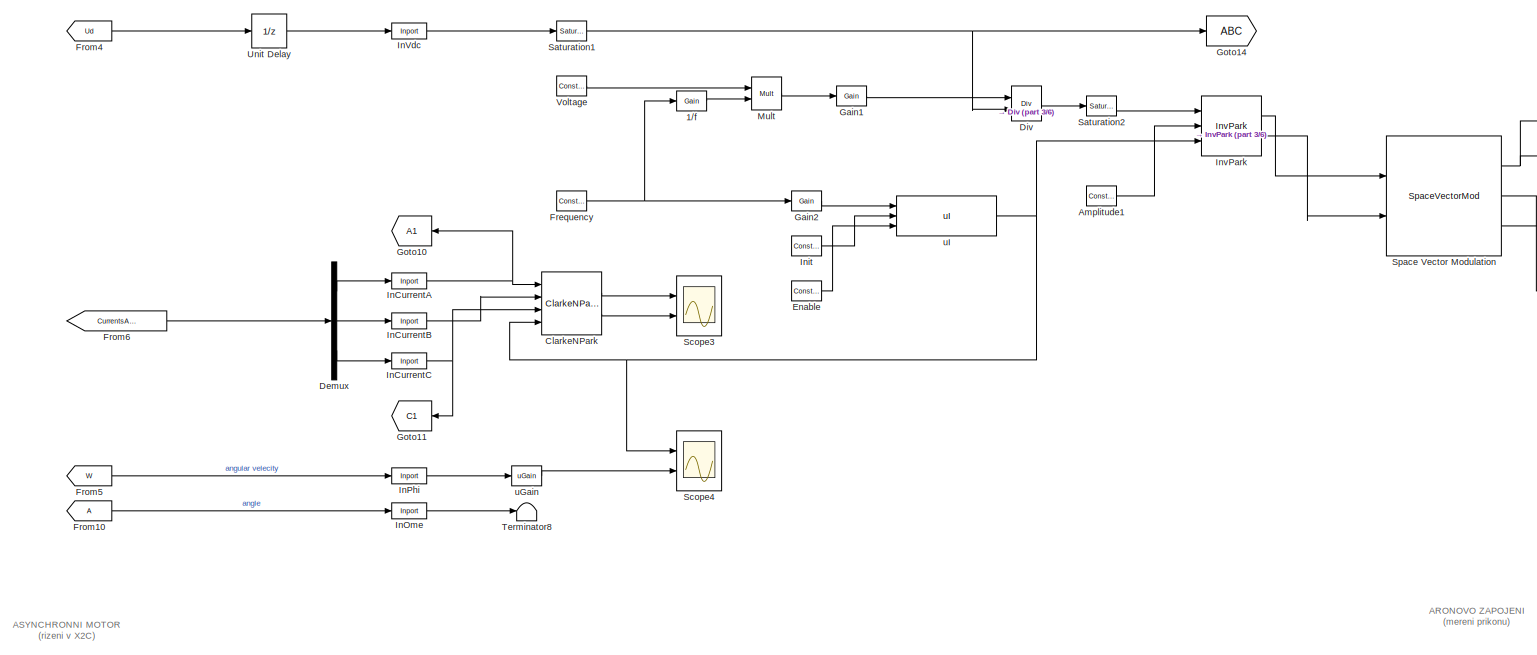
[diagram: root canvas - part 1/6, top center region]
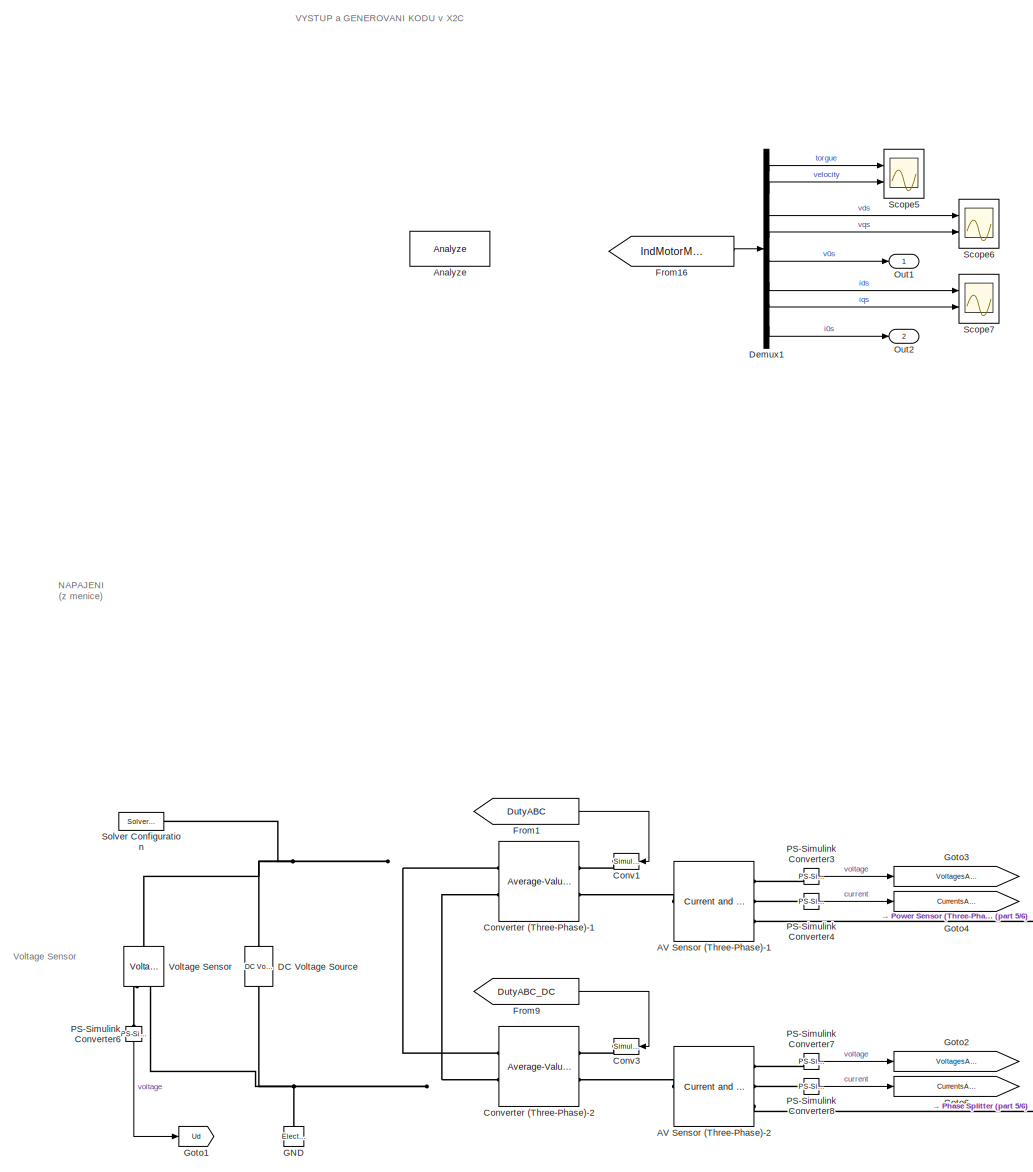
[diagram: root canvas - part 2/6, top left region]
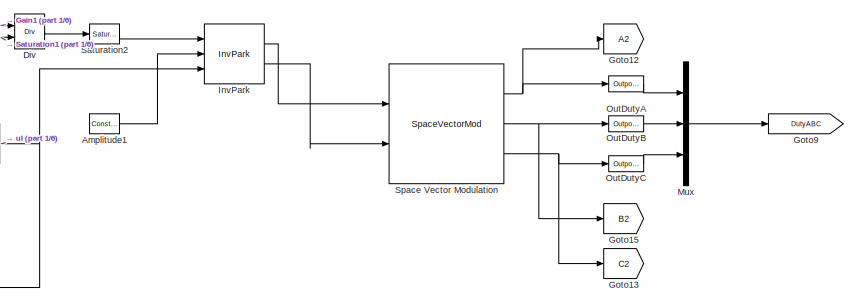
[diagram: root canvas - part 3/6, top right region]
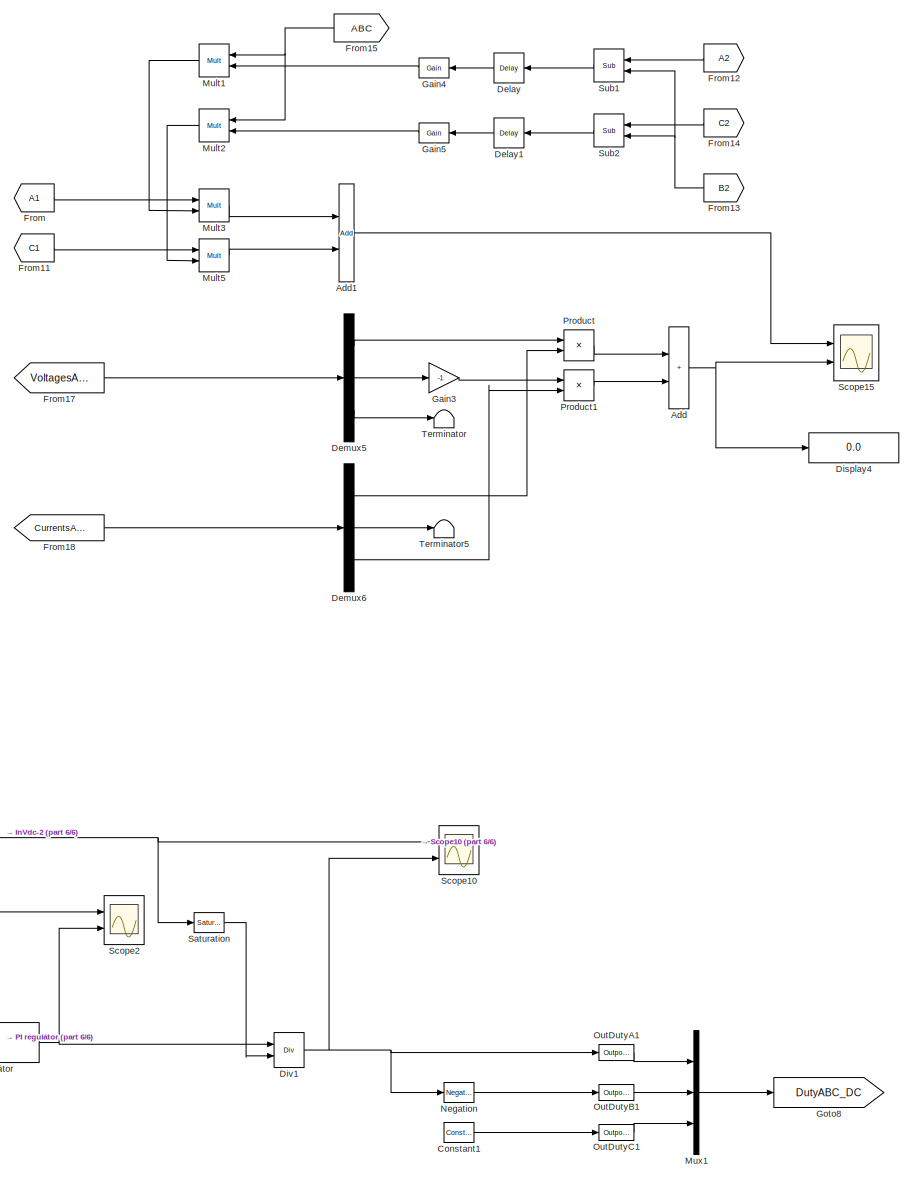
[diagram: root canvas - part 4/6, middle right region]
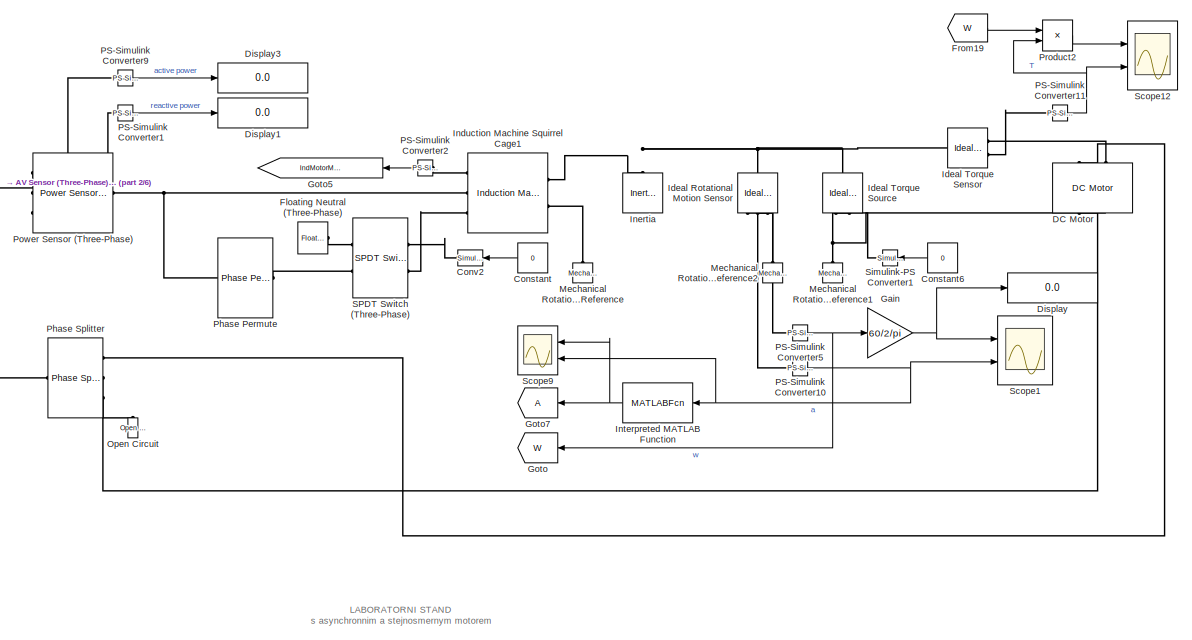
[diagram: root canvas - part 5/6, central region]
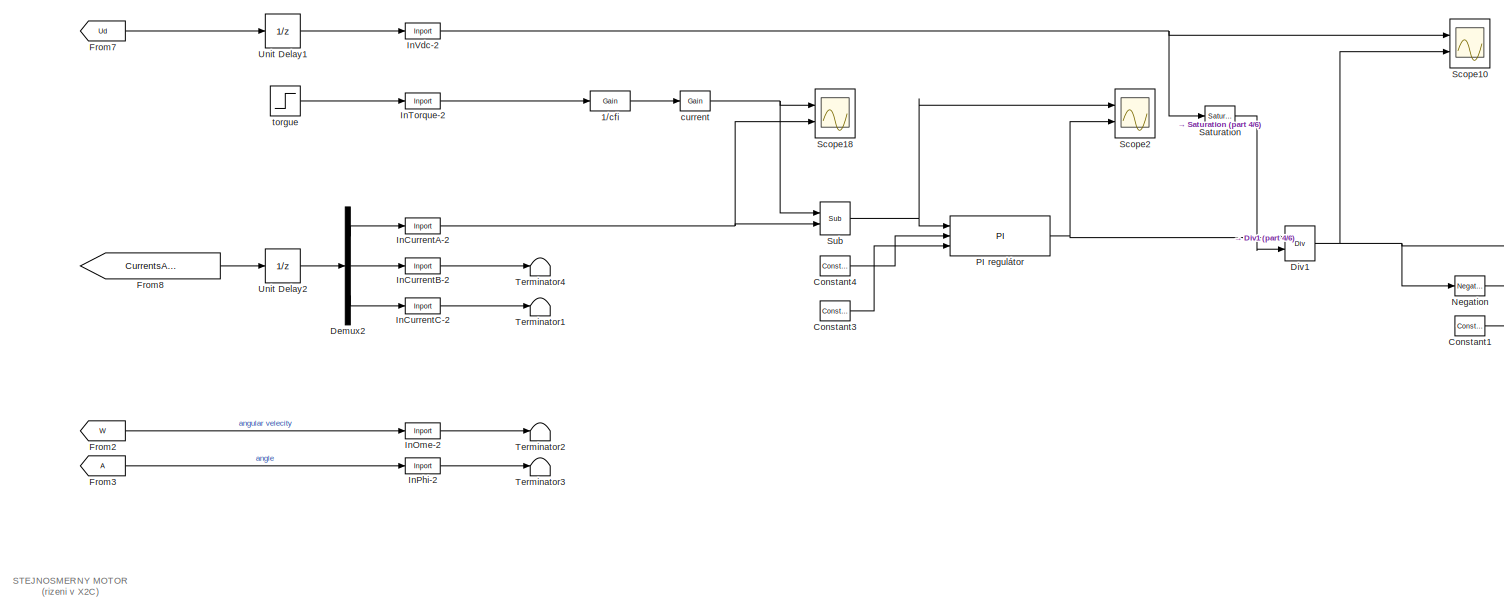
[diagram: root canvas - part 6/6, bottom center region]
MODEL slx_5c7b3cb49d3a
KIND model
CONFIG AbsTol = auto
CONFIG EnableMultiTasking = off
CONFIG FixedStep = auto
CONFIG MaxStep = auto
CONFIG MinStep = auto
CONFIG RelTol = 1e-3
CONFIG SampleTimeConstraint = Unconstrained
CONFIG SolverName = VariableStepAuto
CONFIG StartTime = 0.0
CONFIG StopTime = 3.0
BLOCK [Reference] 1//cfi  REF=General/Gain
  Ports = [1, 1]
  SourceBlock = General/Gain
  SourceProductName = X2C General
  SourceType = X2C - Gain
BLOCK [Reference] 1//f  REF=General/Gain
  Ports = [1, 1]
  SourceBlock = General/Gain
  SourceProductName = X2C General
  SourceType = X2C - Gain
BLOCK [Reference] AV Sensor (Three-Phase)-1  REF=ee_lib/Sensors &
Transducers/Current and Voltage
Sensor (Three-Phase)
  Ports = [0, 0, 0, 0, 0, 1, 3]
  SourceBlock = ee_lib/Sensors &\nTransducers/Current and Voltage\nSensor (Three-Phase)
  SourceProductBaseCode = PS
  SourceType = Current and Voltage\nSensor (Three-Phase)
BLOCK [Reference] AV Sensor (Three-Phase)-2  REF=ee_lib/Sensors &
Transducers/Current and Voltage
Sensor (Three-Phase)
  Ports = [0, 0, 0, 0, 0, 1, 3]
  SourceBlock = ee_lib/Sensors &\nTransducers/Current and Voltage\nSensor (Three-Phase)
  SourceProductBaseCode = PS
  SourceType = Current and Voltage\nSensor (Three-Phase)
BLOCK [Sum] Add
  IconShape = rectangular
  Ports = [2, 1]
BLOCK [Reference] Add1  REF=Math/Add
  Ports = [2, 1]
  SourceBlock = Math/Add
  SourceProductName = X2C Math
  SourceType = X2C - Add
BLOCK [Reference] Amplitude1  REF=General/Constant
  Ports = [0, 1]
  SourceBlock = General/Constant
  SourceProductName = X2C General
  SourceType = X2C - Constant
BLOCK [Reference] Analyze  REF=Basic/Analyze
  Ports = []
  SourceBlock = Basic/Analyze
  SourceProductName = X2C Basic
  SourceType = X2C System Block
BLOCK [Reference] ClarkeNPark  REF=MotorControl/ClarkeNPark
  Ports = [4, 2]
  SourceBlock = MotorControl/ClarkeNPark
  SourceProductName = X2C MotorControl
  SourceType = X2C - ClarkeNPark
BLOCK [Constant] Constant
  Value = 0
BLOCK [Reference] Constant1  REF=General/Constant
  Ports = [0, 1]
  SourceBlock = General/Constant
  SourceProductName = X2C General
  SourceType = X2C - Constant
BLOCK [Reference] Constant3  REF=General/Constant
  Ports = [0, 1]
  SourceBlock = General/Constant
  SourceProductName = X2C General
  SourceType = X2C - Constant
BLOCK [Reference] Constant4  REF=General/Constant
  Ports = [0, 1]
  SourceBlock = General/Constant
  SourceProductName = X2C General
  SourceType = X2C - Constant
BLOCK [Constant] Constant6
  NameLocation = top
  Value = 0
BLOCK [Reference] Conv1  REF=nesl_utility/Simulink-PS
Converter
  Ports = [1, 0, 0, 0, 0, 0, 1]
  SourceBlock = nesl_utility/Simulink-PS\nConverter
  SourceProductBaseCode = PW,SS
  SourceType = Simulink-PS\nConverter
BLOCK [Reference] Conv2  REF=nesl_utility/Simulink-PS
Converter
  Ports = [1, 0, 0, 0, 0, 0, 1]
  SourceBlock = nesl_utility/Simulink-PS\nConverter
  SourceProductBaseCode = PW,SS
  SourceType = Simulink-PS\nConverter
BLOCK [Reference] Conv3  REF=nesl_utility/Simulink-PS
Converter
  Ports = [1, 0, 0, 0, 0, 0, 1]
  SourceBlock = nesl_utility/Simulink-PS\nConverter
  SourceProductBaseCode = PW,SS
  SourceType = Simulink-PS\nConverter
BLOCK [Reference] Converter (Three-Phase)-1  REF=ee_lib/Semiconductors &
Converters/Converters/Average-Value
Voltage Source
Converter
(Three-Phase)
  Ports = [0, 0, 0, 0, 0, 2, 2]
  SourceBlock = ee_lib/Semiconductors &\nConverters/Converters/Average-Value\nVoltage Source\nConverter\n(Three-Phase)
  SourceProductBaseCode = PS
  SourceType = Average-Value\nVoltage Source\nConverter\n(Three-Phase)
BLOCK [Reference] Converter (Three-Phase)-2  REF=ee_lib/Semiconductors &
Converters/Converters/Average-Value
Voltage Source
Converter
(Three-Phase)
  Ports = [0, 0, 0, 0, 0, 2, 2]
  SourceBlock = ee_lib/Semiconductors &\nConverters/Converters/Average-Value\nVoltage Source\nConverter\n(Three-Phase)
  SourceProductBaseCode = PS
  SourceType = Average-Value\nVoltage Source\nConverter\n(Three-Phase)
BLOCK [Reference] DC Motor  REF=ee_lib/Electromechanical/Brushed Motors/DC Motor
  NameLocation = right
  Ports = [0, 0, 0, 0, 0, 2, 2]
  SourceBlock = ee_lib/Electromechanical/Brushed Motors/DC Motor
  SourceProductBaseCode = PS
  SourceType = DC Motor
BLOCK [Reference] DC Voltage Source  REF=fl_lib/Electrical/Electrical Sources/DC Voltage Source
  NameLocation = left
  Ports = [0, 0, 0, 0, 0, 1, 1]
  SourceBlock = fl_lib/Electrical/Electrical Sources/DC Voltage Source
  SourceProductBaseCode = SS
  SourceType = DC Voltage Source
BLOCK [Reference] Delay  REF=Control/Delay
  Ports = [1, 1]
  SourceBlock = Control/Delay
  SourceProductName = X2C Control
  SourceType = X2C - Delay
BLOCK [Reference] Delay1  REF=Control/Delay
  Ports = [1, 1]
  SourceBlock = Control/Delay
  SourceProductName = X2C Control
  SourceType = X2C - Delay
BLOCK [Demux] Demux
  Outputs = 3
  Ports = [1, 3]
BLOCK [Demux] Demux1
  NameLocation = top
  Outputs = 8
  Ports = [1, 8]
BLOCK [Demux] Demux2
  Outputs = 3
  Ports = [1, 3]
BLOCK [Demux] Demux5
  Outputs = 3
  Ports = [1, 3]
BLOCK [Demux] Demux6
  Outputs = 3
  Ports = [1, 3]
BLOCK [Display] Display
  Decimation = 1
  Ports = [1]
BLOCK [Display] Display1
  Decimation = 1
  Ports = [1]
BLOCK [Display] Display3
  Decimation = 1
  Ports = [1]
BLOCK [Display] Display4
  Decimation = 1
  Ports = [1]
BLOCK [Reference] Div  REF=Math/Div
  Ports = [2, 1]
  SourceBlock = Math/Div
  SourceProductName = X2C Math
  SourceType = X2C - Div
BLOCK [Reference] Div1  REF=Math/Div
  Ports = [2, 1]
  SourceBlock = Math/Div
  SourceProductName = X2C Math
  SourceType = X2C - Div
BLOCK [Reference] Enable  REF=General/Constant
  Ports = [0, 1]
  SourceBlock = General/Constant
  SourceProductName = X2C General
  SourceType = X2C - Constant
BLOCK [Reference] Floating Neutral (Three-Phase)  REF=ee_lib/Connectors &
References/Floating Neutral
(Three-Phase)
  Ports = [0, 0, 0, 0, 0, 1]
  SourceBlock = ee_lib/Connectors &\nReferences/Floating Neutral\n(Three-Phase)
  SourceProductBaseCode = PS
  SourceType = Floating Neutral\n(Three-Phase)
BLOCK [Reference] Frequency  REF=General/Constant
  Ports = [0, 1]
  SourceBlock = General/Constant
  SourceProductName = X2C General
  SourceType = X2C - Constant
BLOCK [From] From
  GotoTag = A1
BLOCK [From] From1
  GotoTag = DutyABC
  TagVisibility = global
BLOCK [From] From10
BLOCK [From] From11
  GotoTag = C1
BLOCK [From] From12
  GotoTag = A2
  NameLocation = top
BLOCK [From] From13
  GotoTag = B2
  NameLocation = top
BLOCK [From] From14
  GotoTag = C2
  NameLocation = top
BLOCK [From] From15
  GotoTag = ABC
BLOCK [From] From16
  GotoTag = IndMotorMeasures
  TagVisibility = global
BLOCK [From] From17
  GotoTag = VoltagesABC
BLOCK [From] From18
  GotoTag = CurrentsABC
BLOCK [From] From19
  GotoTag = W
BLOCK [From] From2
  GotoTag = W
BLOCK [From] From3
BLOCK [From] From4
  GotoTag = Ud
  TagVisibility = global
BLOCK [From] From5
  GotoTag = W
BLOCK [From] From6
  GotoTag = CurrentsABC
BLOCK [From] From7
  GotoTag = Ud
  TagVisibility = global
BLOCK [From] From8
  GotoTag = CurrentsABC_DC
BLOCK [From] From9
  GotoTag = DutyABC_DC
BLOCK [Reference] GND  REF=fl_lib/Electrical/Electrical Elements/Electrical Reference
  NameLocation = right
  Ports = [0, 0, 0, 0, 0, 1]
  SourceBlock = fl_lib/Electrical/Electrical Elements/Electrical Reference
  SourceProductBaseCode = SS
  SourceType = Electrical Reference
BLOCK [Gain] Gain
  Gain = 60/2/pi
BLOCK [Reference] Gain1  REF=General/Gain
  Ports = [1, 1]
  SourceBlock = General/Gain
  SourceProductName = X2C General
  SourceType = X2C - Gain
BLOCK [Reference] Gain2  REF=General/Gain
  Ports = [1, 1]
  SourceBlock = General/Gain
  SourceProductName = X2C General
  SourceType = X2C - Gain
BLOCK [Gain] Gain3
  Gain = -1
BLOCK [Reference] Gain4  REF=General/Gain
  Ports = [1, 1]
  SourceBlock = General/Gain
  SourceProductName = X2C General
  SourceType = X2C - Gain
BLOCK [Reference] Gain5  REF=General/Gain
  Ports = [1, 1]
  SourceBlock = General/Gain
  SourceProductName = X2C General
  SourceType = X2C - Gain
BLOCK [Goto] Goto
  GotoTag = W
BLOCK [Goto] Goto1
  GotoTag = Ud
  TagVisibility = global
BLOCK [Goto] Goto10
  GotoTag = A1
  NameLocation = top
BLOCK [Goto] Goto11
  GotoTag = C1
  NameLocation = top
BLOCK [Goto] Goto12
  GotoTag = A2
BLOCK [Goto] Goto13
  GotoTag = C2
BLOCK [Goto] Goto14
  GotoTag = ABC
BLOCK [Goto] Goto15
  GotoTag = B2
BLOCK [Goto] Goto2
  Commented = on
  GotoTag = VoltagesABC_DC
BLOCK [Goto] Goto3
  GotoTag = VoltagesABC
BLOCK [Goto] Goto4
  GotoTag = CurrentsABC
BLOCK [Goto] Goto5
  GotoTag = IndMotorMeasures
  TagVisibility = global
BLOCK [Goto] Goto6
  GotoTag = CurrentsABC_DC
BLOCK [Goto] Goto7
BLOCK [Goto] Goto8
  GotoTag = DutyABC_DC
BLOCK [Goto] Goto9
  GotoTag = DutyABC
  TagVisibility = global
BLOCK [Reference] Ideal Rotational Motion Sensor  REF=fl_lib/Mechanical/Mechanical Sensors/Ideal Rotational
Motion Sensor
  NameLocation = left
  Ports = [0, 0, 0, 0, 0, 1, 3]
  SourceBlock = fl_lib/Mechanical/Mechanical Sensors/Ideal Rotational\nMotion Sensor
  SourceProductBaseCode = SS
  SourceType = Ideal Rotational\nMotion Sensor
BLOCK [Reference] Ideal Torque Sensor  REF=fl_lib/Mechanical/Mechanical Sensors/Ideal Torque Sensor
  Ports = [0, 0, 0, 0, 0, 1, 2]
  SourceBlock = fl_lib/Mechanical/Mechanical Sensors/Ideal Torque Sensor
  SourceProductBaseCode = SS
  SourceType = Ideal Torque Sensor
BLOCK [Reference] Ideal Torque Source  REF=fl_lib/Mechanical/Mechanical Sources/Ideal Torque Source
  NameLocation = right
  Ports = [0, 0, 0, 0, 0, 1, 2]
  SourceBlock = fl_lib/Mechanical/Mechanical Sources/Ideal Torque Source
  SourceProductBaseCode = SS
  SourceType = Ideal Torque Source
BLOCK [Reference] InCurrentA  REF=General/Inport
  Ports = [1, 1]
  SourceBlock = General/Inport
  SourceProductName = X2C General
  SourceType = X2C - Inport
BLOCK [Reference] InCurrentA-2  REF=General/Inport
  Ports = [1, 1]
  SourceBlock = General/Inport
  SourceProductName = X2C General
  SourceType = X2C - Inport
BLOCK [Reference] InCurrentB  REF=General/Inport
  Ports = [1, 1]
  SourceBlock = General/Inport
  SourceProductName = X2C General
  SourceType = X2C - Inport
BLOCK [Reference] InCurrentB-2  REF=General/Inport
  Ports = [1, 1]
  SourceBlock = General/Inport
  SourceProductName = X2C General
  SourceType = X2C - Inport
BLOCK [Reference] InCurrentC  REF=General/Inport
  Ports = [1, 1]
  SourceBlock = General/Inport
  SourceProductName = X2C General
  SourceType = X2C - Inport
BLOCK [Reference] InCurrentC-2  REF=General/Inport
  Ports = [1, 1]
  SourceBlock = General/Inport
  SourceProductName = X2C General
  SourceType = X2C - Inport
BLOCK [Reference] InOme  REF=General/Inport
  Ports = [1, 1]
  SourceBlock = General/Inport
  SourceProductName = X2C General
  SourceType = X2C - Inport
BLOCK [Reference] InOme-2  REF=General/Inport
  Ports = [1, 1]
  SourceBlock = General/Inport
  SourceProductName = X2C General
  SourceType = X2C - Inport
BLOCK [Reference] InPhi  REF=General/Inport
  Ports = [1, 1]
  SourceBlock = General/Inport
  SourceProductName = X2C General
  SourceType = X2C - Inport
BLOCK [Reference] InPhi-2  REF=General/Inport
  Ports = [1, 1]
  SourceBlock = General/Inport
  SourceProductName = X2C General
  SourceType = X2C - Inport
BLOCK [Reference] InTorque-2  REF=General/Inport
  Ports = [1, 1]
  SourceBlock = General/Inport
  SourceProductName = X2C General
  SourceType = X2C - Inport
BLOCK [Reference] InVdc  REF=General/Inport
  Ports = [1, 1]
  SourceBlock = General/Inport
  SourceProductName = X2C General
  SourceType = X2C - Inport
BLOCK [Reference] InVdc-2  REF=General/Inport
  Ports = [1, 1]
  SourceBlock = General/Inport
  SourceProductName = X2C General
  SourceType = X2C - Inport
BLOCK [Reference] Induction Machine Squirrel Cage1  REF=ee_lib/Electromechanical/Asynchronous/Induction Machine
Squirrel Cage
  Ports = [0, 0, 0, 0, 0, 2, 3]
  SourceBlock = ee_lib/Electromechanical/Asynchronous/Induction Machine\nSquirrel Cage
  SourceProductBaseCode = PS
  SourceType = Induction Machine\nSquirrel Cage
BLOCK [Reference] Inertia  REF=fl_lib/Mechanical/Rotational Elements/Inertia
  NameLocation = right
  Ports = [0, 0, 0, 0, 0, 1]
  SourceBlock = fl_lib/Mechanical/Rotational Elements/Inertia
  SourceProductBaseCode = SS
  SourceType = Inertia
BLOCK [Reference] Init  REF=General/Constant
  Ports = [0, 1]
  SourceBlock = General/Constant
  SourceProductName = X2C General
  SourceType = X2C - Constant
BLOCK [MATLABFcn] Interpreted MATLAB Function
  MATLABFcn = mod(u(1),2*pi)-pi
  Ports = [1, 1]
BLOCK [Reference] InvPark  REF=MotorControl/InvPark
  Ports = [3, 2]
  SourceBlock = MotorControl/InvPark
  SourceProductName = X2C MotorControl
  SourceType = X2C - InvPark
BLOCK [Reference] Mechanical Rotational Reference  REF=fl_lib/Mechanical/Rotational Elements/Mechanical
Rotational Reference
  NameLocation = right
  Ports = [0, 0, 0, 0, 0, 1]
  SourceBlock = fl_lib/Mechanical/Rotational Elements/Mechanical\nRotational Reference
  SourceProductBaseCode = SS
  SourceType = Mechanical\nRotational Reference
BLOCK [Reference] Mechanical Rotational Reference1  REF=fl_lib/Mechanical/Rotational Elements/Mechanical
Rotational Reference
  NameLocation = right
  Ports = [0, 0, 0, 0, 0, 1]
  SourceBlock = fl_lib/Mechanical/Rotational Elements/Mechanical\nRotational Reference
  SourceProductBaseCode = SS
  SourceType = Mechanical\nRotational Reference
BLOCK [Reference] Mechanical Rotational Reference2  REF=fl_lib/Mechanical/Rotational Elements/Mechanical
Rotational Reference
  NameLocation = right
  Ports = [0, 0, 0, 0, 0, 1]
  SourceBlock = fl_lib/Mechanical/Rotational Elements/Mechanical\nRotational Reference
  SourceProductBaseCode = SS
  SourceType = Mechanical\nRotational Reference
BLOCK [Reference] Mult  REF=Math/Mult
  Ports = [2, 1]
  SourceBlock = Math/Mult
  SourceProductName = X2C Math
  SourceType = X2C - Mult
BLOCK [Reference] Mult1  REF=Math/Mult
  Ports = [2, 1]
  SourceBlock = Math/Mult
  SourceProductName = X2C Math
  SourceType = X2C - Mult
BLOCK [Reference] Mult2  REF=Math/Mult
  Ports = [2, 1]
  SourceBlock = Math/Mult
  SourceProductName = X2C Math
  SourceType = X2C - Mult
BLOCK [Reference] Mult3  REF=Math/Mult
  Ports = [2, 1]
  SourceBlock = Math/Mult
  SourceProductName = X2C Math
  SourceType = X2C - Mult
BLOCK [Reference] Mult5  REF=Math/Mult
  Ports = [2, 1]
  SourceBlock = Math/Mult
  SourceProductName = X2C Math
  SourceType = X2C - Mult
BLOCK [Mux] Mux
  DisplayOption = bar
  Inputs = 3
  Ports = [3, 1]
BLOCK [Mux] Mux1
  DisplayOption = bar
  Inputs = 3
  Ports = [3, 1]
BLOCK [Reference] Negation  REF=Math/Negation
  Ports = [1, 1]
  SourceBlock = Math/Negation
  SourceProductName = X2C Math
  SourceType = X2C - Negation
BLOCK [Reference] Open Circuit  REF=fl_lib/Electrical/Electrical Elements/Open Circuit
  NameLocation = right
  Ports = [0, 0, 0, 0, 0, 1]
  SourceBlock = fl_lib/Electrical/Electrical Elements/Open Circuit
  SourceProductBaseCode = SS
  SourceType = Open Circuit
BLOCK [Outport] Out1
  NameLocation = top
BLOCK [Outport] Out2
  NameLocation = top
  Port = 2
BLOCK [Reference] OutDutyA  REF=General/Outport
  Ports = [1, 1]
  SourceBlock = General/Outport
  SourceProductName = X2C General
  SourceType = X2C - Outport
BLOCK [Reference] OutDutyA1  REF=General/Outport
  Ports = [1, 1]
  SourceBlock = General/Outport
  SourceProductName = X2C General
  SourceType = X2C - Outport
BLOCK [Reference] OutDutyB  REF=General/Outport
  Ports = [1, 1]
  SourceBlock = General/Outport
  SourceProductName = X2C General
  SourceType = X2C - Outport
BLOCK [Reference] OutDutyB1  REF=General/Outport
  Ports = [1, 1]
  SourceBlock = General/Outport
  SourceProductName = X2C General
  SourceType = X2C - Outport
BLOCK [Reference] OutDutyC  REF=General/Outport
  Ports = [1, 1]
  SourceBlock = General/Outport
  SourceProductName = X2C General
  SourceType = X2C - Outport
BLOCK [Reference] OutDutyC1  REF=General/Outport
  Ports = [1, 1]
  SourceBlock = General/Outport
  SourceProductName = X2C General
  SourceType = X2C - Outport
BLOCK [Reference] PI regulátor  REF=Control/PI
  Ports = [3, 1]
  SourceBlock = Control/PI
  SourceProductName = X2C Control
  SourceType = X2C - PI
BLOCK [Reference] PS-Simulink Converter1  REF=nesl_utility/PS-Simulink
Converter
  Ports = [0, 1, 0, 0, 0, 1]
  SourceBlock = nesl_utility/PS-Simulink\nConverter
  SourceProductBaseCode = PW,SS
  SourceType = PS-Simulink\nConverter
BLOCK [Reference] PS-Simulink Converter10  REF=nesl_utility/PS-Simulink
Converter
  Ports = [0, 1, 0, 0, 0, 1]
  SourceBlock = nesl_utility/PS-Simulink\nConverter
  SourceProductBaseCode = PW,SS
  SourceType = PS-Simulink\nConverter
BLOCK [Reference] PS-Simulink Converter11  REF=nesl_utility/PS-Simulink
Converter
  Ports = [0, 1, 0, 0, 0, 1]
  SourceBlock = nesl_utility/PS-Simulink\nConverter
  SourceProductBaseCode = PW,SS
  SourceType = PS-Simulink\nConverter
BLOCK [Reference] PS-Simulink Converter2  REF=nesl_utility/PS-Simulink
Converter
  NameLocation = top
  Ports = [0, 1, 0, 0, 0, 1]
  SourceBlock = nesl_utility/PS-Simulink\nConverter
  SourceProductBaseCode = PW,SS
  SourceType = PS-Simulink\nConverter
BLOCK [Reference] PS-Simulink Converter3  REF=nesl_utility/PS-Simulink
Converter
  Ports = [0, 1, 0, 0, 0, 1]
  SourceBlock = nesl_utility/PS-Simulink\nConverter
  SourceProductBaseCode = PW,SS
  SourceType = PS-Simulink\nConverter
BLOCK [Reference] PS-Simulink Converter4  REF=nesl_utility/PS-Simulink
Converter
  Ports = [0, 1, 0, 0, 0, 1]
  SourceBlock = nesl_utility/PS-Simulink\nConverter
  SourceProductBaseCode = PW,SS
  SourceType = PS-Simulink\nConverter
BLOCK [Reference] PS-Simulink Converter5  REF=nesl_utility/PS-Simulink
Converter
  Ports = [0, 1, 0, 0, 0, 1]
  SourceBlock = nesl_utility/PS-Simulink\nConverter
  SourceProductBaseCode = PW,SS
  SourceType = PS-Simulink\nConverter
BLOCK [Reference] PS-Simulink Converter6  REF=nesl_utility/PS-Simulink
Converter
  NameLocation = left
  Ports = [0, 1, 0, 0, 0, 1]
  SourceBlock = nesl_utility/PS-Simulink\nConverter
  SourceProductBaseCode = PW,SS
  SourceType = PS-Simulink\nConverter
BLOCK [Reference] PS-Simulink Converter7  REF=nesl_utility/PS-Simulink
Converter
  Ports = [0, 1, 0, 0, 0, 1]
  SourceBlock = nesl_utility/PS-Simulink\nConverter
  SourceProductBaseCode = PW,SS
  SourceType = PS-Simulink\nConverter
BLOCK [Reference] PS-Simulink Converter8  REF=nesl_utility/PS-Simulink
Converter
  Ports = [0, 1, 0, 0, 0, 1]
  SourceBlock = nesl_utility/PS-Simulink\nConverter
  SourceProductBaseCode = PW,SS
  SourceType = PS-Simulink\nConverter
BLOCK [Reference] PS-Simulink Converter9  REF=nesl_utility/PS-Simulink
Converter
  Ports = [0, 1, 0, 0, 0, 1]
  SourceBlock = nesl_utility/PS-Simulink\nConverter
  SourceProductBaseCode = PW,SS
  SourceType = PS-Simulink\nConverter
BLOCK [Reference] Phase Permute  REF=ee_lib/Connectors &
References/Phase Permute
  Ports = [0, 0, 0, 0, 0, 1, 1]
  SourceBlock = ee_lib/Connectors &\nReferences/Phase Permute
  SourceProductBaseCode = PS
  SourceType = Phase Permute
BLOCK [Reference] Phase Splitter  REF=ee_lib/Connectors &
References/Phase Splitter
  Ports = [0, 0, 0, 0, 0, 1, 3]
  SourceBlock = ee_lib/Connectors &\nReferences/Phase Splitter
  SourceProductBaseCode = PS
  SourceType = Phase Splitter
BLOCK [Reference] Power Sensor (Three-Phase)  REF=ee_lib/Sensors &
Transducers/Power Sensor
(Three-Phase)
  Ports = [0, 0, 0, 0, 0, 3, 1]
  SourceBlock = ee_lib/Sensors &\nTransducers/Power Sensor\n(Three-Phase)
  SourceProductBaseCode = PS
  SourceType = Power Sensor\n(Three-Phase)
BLOCK [Product] Product
  Ports = [2, 1]
BLOCK [Product] Product1
  Ports = [2, 1]
BLOCK [Product] Product2
  Ports = [2, 1]
BLOCK [Reference] SPDT Switch (Three-Phase)  REF=ee_lib/Switches & Breakers/SPDT Switch
(Three-Phase)
  Ports = [0, 0, 0, 0, 0, 2, 2]
  SourceBlock = ee_lib/Switches & Breakers/SPDT Switch\n(Three-Phase)
  SourceProductBaseCode = PS
  SourceType = SPDT Switch\n(Three-Phase)
BLOCK [Reference] Saturation  REF=General/Saturation
  Ports = [1, 1]
  SourceBlock = General/Saturation
  SourceProductName = X2C General
  SourceType = X2C - Saturation
BLOCK [Reference] Saturation1  REF=General/Saturation
  Ports = [1, 1]
  SourceBlock = General/Saturation
  SourceProductName = X2C General
  SourceType = X2C - Saturation
BLOCK [Reference] Saturation2  REF=General/Saturation
  Ports = [1, 1]
  SourceBlock = General/Saturation
  SourceProductName = X2C General
  SourceType = X2C - Saturation
BLOCK [Scope] Scope1
  Floating = off
  NameLocation = top
  NumInputPorts = 2
  Ports = [2]
  ScopeSpecificationString = Simulink.scopes.TimeScopeBlockCfg('CurrentConfiguration', extmgr.ConfigurationSet(extmgr.Configuration('Core','General UI',true),extmgr.Configuration('Core','Source UI',true),extmgr.Configuration('Sources','WiredSimulink',true),extmgr.Configuration('Visuals','Time Domain',true,'SerializedDisplays',{struct('MinYLimReal','-187.50013','MaxYLimReal','1687.50113','YLabelReal','','MinYLimMag',' 0.00000'...<+1995ch>
BLOCK [Scope] Scope10
  Floating = off
  NameLocation = top
  NumInputPorts = 2
  Ports = [2]
  ScopeSpecificationString = Simulink.scopes.TimeScopeBlockCfg('CurrentConfiguration', extmgr.ConfigurationSet(extmgr.Configuration('Core','General UI',true),extmgr.Configuration('Core','Source UI',true),extmgr.Configuration('Sources','WiredSimulink',true,'DataLoggingVariableName','ScopeData2'),extmgr.Configuration('Visuals','Time Domain',true,'SerializedDisplays',{struct('MinYLimReal','-0.04228','MaxYLimReal','0.38051','YLab...<+1488ch>
BLOCK [Scope] Scope12
  Floating = off
  NameLocation = top
  NumInputPorts = 2
  Ports = [2]
  ScopeSpecificationString = Simulink.scopes.TimeScopeBlockCfg('CurrentConfiguration', extmgr.ConfigurationSet(extmgr.Configuration('Core','General UI',true),extmgr.Configuration('Core','Source UI',true),extmgr.Configuration('Sources','WiredSimulink',true,'DataLoggingVariableName','ScopeData8'),extmgr.Configuration('Visuals','Time Domain',true,'SerializedDisplays',{struct('MinYLimReal','-29.82182','MaxYLimReal','268.18897','Y...<+2029ch>
BLOCK [Scope] Scope15
  Floating = off
  NumInputPorts = 2
  Ports = [2]
  ScopeSpecificationString = Simulink.scopes.TimeScopeBlockCfg('CurrentConfiguration', extmgr.ConfigurationSet(extmgr.Configuration('Core','General UI',true),extmgr.Configuration('Core','Source UI',true),extmgr.Configuration('Sources','WiredSimulink',true,'DataLoggingVariableName','ScopeData6'),extmgr.Configuration('Visuals','Time Domain',true,'SerializedDisplays',{struct('MinYLimReal','-145.77676','MaxYLimReal','1311.99088',...<+1511ch>
BLOCK [Scope] Scope18
  Floating = off
  NameLocation = top
  NumInputPorts = 2
  Ports = [2]
  ScopeSpecificationString = Simulink.scopes.TimeScopeBlockCfg('CurrentConfiguration', extmgr.ConfigurationSet(extmgr.Configuration('Core','General UI',true),extmgr.Configuration('Core','Source UI',true),extmgr.Configuration('Sources','WiredSimulink',true,'DataLoggingVariableName','ScopeData3'),extmgr.Configuration('Visuals','Time Domain',true,'SerializedDisplays',{struct('MinYLimReal','-16.85963','MaxYLimReal','-16.17326','Y...<+1519ch>
BLOCK [Scope] Scope2
  Floating = off
  NameLocation = top
  NumInputPorts = 2
  Ports = [2]
  ScopeSpecificationString = Simulink.scopes.TimeScopeBlockCfg('CurrentConfiguration', extmgr.ConfigurationSet(extmgr.Configuration('Core','General UI',true),extmgr.Configuration('Core','Source UI',true),extmgr.Configuration('Sources','WiredSimulink',true,'DataLoggingVariableName','ScopeData1'),extmgr.Configuration('Visuals','Time Domain',true,'SerializedDisplays',{struct('MinYLimReal','-5.22977','MaxYLimReal','13.73456','YLa...<+1511ch>
BLOCK [Scope] Scope3
  Floating = off
  NameLocation = top
  NumInputPorts = 2
  Ports = [2]
  ScopeSpecificationString = Simulink.scopes.TimeScopeBlockCfg('CurrentConfiguration', extmgr.ConfigurationSet(extmgr.Configuration('Core','General UI',true),extmgr.Configuration('Core','Source UI',true),extmgr.Configuration('Sources','WiredSimulink',true,'DataLoggingVariableName','ScopeData4'),extmgr.Configuration('Visuals','Time Domain',true,'SerializedDisplays',{struct('MinYLimReal','-0.45212','MaxYLimReal','2.25034','YLab...<+2044ch>
BLOCK [Scope] Scope4
  Floating = off
  NameLocation = top
  NumInputPorts = 2
  Ports = [2]
  ScopeSpecificationString = Simulink.scopes.TimeScopeBlockCfg('CurrentConfiguration', extmgr.ConfigurationSet(extmgr.Configuration('Core','General UI',true),extmgr.Configuration('Core','Source UI',true),extmgr.Configuration('Sources','WiredSimulink',true,'DataLoggingVariableName','ScopeData5'),extmgr.Configuration('Visuals','Time Domain',true,'SerializedDisplays',{struct('MinYLimReal','-0.45212','MaxYLimReal','2.25034','YLab...<+2044ch>
BLOCK [Scope] Scope5
  Floating = off
  NameLocation = top
  NumInputPorts = 2
  Ports = [2]
  ScopeSpecificationString = Simulink.scopes.TimeScopeBlockCfg('CurrentConfiguration', extmgr.ConfigurationSet(extmgr.Configuration('Core','General UI',true),extmgr.Configuration('Core','Source UI',true),extmgr.Configuration('Sources','WiredSimulink',true,'DataLoggingVariableName','ScopeData9'),extmgr.Configuration('Visuals','Time Domain',true,'SerializedDisplays',{struct('MinYLimReal','-0.5617','MaxYLimReal','5.05534','YLabe...<+2031ch>
BLOCK [Scope] Scope6
  Floating = off
  NameLocation = top
  NumInputPorts = 2
  Ports = [2]
  ScopeSpecificationString = Simulink.scopes.TimeScopeBlockCfg('CurrentConfiguration', extmgr.ConfigurationSet(extmgr.Configuration('Core','General UI',true),extmgr.Configuration('Core','Source UI',true),extmgr.Configuration('Sources','WiredSimulink',true,'DataLoggingVariableName','ScopeData10'),extmgr.Configuration('Visuals','Time Domain',true,'SerializedDisplays',{struct('MinYLimReal','-0.07633','MaxYLimReal','0.68697','YLa...<+2016ch>
BLOCK [Scope] Scope7
  Floating = off
  NameLocation = top
  NumInputPorts = 2
  Ports = [2]
  ScopeSpecificationString = Simulink.scopes.TimeScopeBlockCfg('CurrentConfiguration', extmgr.ConfigurationSet(extmgr.Configuration('Core','General UI',true),extmgr.Configuration('Core','Source UI',true),extmgr.Configuration('Sources','WiredSimulink',true,'DataLoggingVariableName','ScopeData11'),extmgr.Configuration('Visuals','Time Domain',true,'SerializedDisplays',{struct('MinYLimReal','-1.35987','MaxYLimReal','12.2388','YLa...<+2024ch>
BLOCK [Scope] Scope9
  Floating = off
  NameLocation = top
  NumInputPorts = 2
  Ports = [2]
  ScopeSpecificationString = Simulink.scopes.TimeScopeBlockCfg('CurrentConfiguration', extmgr.ConfigurationSet(extmgr.Configuration('Core','General UI',true),extmgr.Configuration('Core','Source UI',true),extmgr.Configuration('Sources','WiredSimulink',true,'DataLoggingVariableName','ScopeData7'),extmgr.Configuration('Visuals','Time Domain',true,'SerializedDisplays',{struct('MinYLimReal','-57.31613','MaxYLimReal','515.84519','Y...<+2050ch>
BLOCK [Reference] Simulink-PS Converter1  REF=nesl_utility/Simulink-PS
Converter
  NameLocation = top
  Ports = [1, 0, 0, 0, 0, 0, 1]
  SourceBlock = nesl_utility/Simulink-PS\nConverter
  SourceProductBaseCode = PW,SS
  SourceType = Simulink-PS\nConverter
BLOCK [Reference] Solver Configuration  REF=nesl_utility/Solver
Configuration
  Ports = [0, 0, 0, 0, 0, 0, 1]
  SourceBlock = nesl_utility/Solver\nConfiguration
  SourceProductBaseCode = PW,SS
  SourceType = Solver\nConfiguration
BLOCK [Reference] Space Vector Modulation  REF=MotorControl/SpaceVectorMod
  Ports = [2, 3]
  SourceBlock = MotorControl/SpaceVectorMod
  SourceProductName = X2C MotorControl
  SourceType = X2C - SpaceVectorMod
BLOCK [Reference] Sub  REF=Math/Sub
  Ports = [2, 1]
  SourceBlock = Math/Sub
  SourceProductName = X2C Math
  SourceType = X2C - Sub
BLOCK [Reference] Sub1  REF=Math/Sub
  Ports = [2, 1]
  SourceBlock = Math/Sub
  SourceProductName = X2C Math
  SourceType = X2C - Sub
BLOCK [Reference] Sub2  REF=Math/Sub
  Ports = [2, 1]
  SourceBlock = Math/Sub
  SourceProductName = X2C Math
  SourceType = X2C - Sub
BLOCK [Terminator] Terminator
BLOCK [Terminator] Terminator1
BLOCK [Terminator] Terminator2
BLOCK [Terminator] Terminator3
BLOCK [Terminator] Terminator4
BLOCK [Terminator] Terminator5
BLOCK [Terminator] Terminator8
BLOCK [UnitDelay] Unit Delay
  HasFrameUpgradeWarning = on
  SampleTime = -1
BLOCK [UnitDelay] Unit Delay1
  HasFrameUpgradeWarning = on
  SampleTime = -1
BLOCK [UnitDelay] Unit Delay2
  HasFrameUpgradeWarning = on
  SampleTime = -1
BLOCK [Reference] Voltage  REF=General/Constant
  Ports = [0, 1]
  SourceBlock = General/Constant
  SourceProductName = X2C General
  SourceType = X2C - Constant
BLOCK [Reference] Voltage Sensor  REF=fl_lib/Electrical/Electrical Sensors/Voltage Sensor
  NameLocation = right
  Ports = [0, 0, 0, 0, 0, 1, 2]
  SourceBlock = fl_lib/Electrical/Electrical Sensors/Voltage Sensor
  SourceProductBaseCode = SS
  SourceType = Voltage Sensor
BLOCK [Reference] current  REF=General/Gain
  Ports = [1, 1]
  SourceBlock = General/Gain
  SourceProductName = X2C General
  SourceType = X2C - Gain
BLOCK [Step] torgue
  After = 1.0
  SampleTime = 0
  Time = 2
BLOCK [Reference] uGain  REF=General/uGain
  Ports = [1, 1]
  SourceBlock = General/uGain
  SourceProductName = X2C General
  SourceType = X2C - uGain
BLOCK [Reference] uI  REF=Control/uI
  Ports = [3, 1]
  SourceBlock = Control/uI
  SourceProductName = X2C Control
  SourceType = X2C - uI
ANNOTATION (root): Voltage Sensor
ANNOTATION (root): ARONOVO ZAPOJENI (mereni prikonu)
ANNOTATION (root): ASYNCHRONNI MOTOR (rizeni v X2C)
ANNOTATION (root): LABORATORNI STAND s asynchronnim a stejnosmernym motorem
ANNOTATION (root): NAPAJENI (z menice)
ANNOTATION (root): STEJNOSMERNY MOTOR (rizeni v X2C)
ANNOTATION (root): VYSTUP a GENEROVANI KODU v X2C
LINE 1//cfi:1 -> current:1
LINE 1//f:1 -> Mult:2
LINE Add1:1 -> Scope15:1
NET Add:1 -> Display4:1, Scope15:2
LINE Amplitude1:1 -> InvPark:2
LINE ClarkeNPark:1 -> Scope3:1
LINE ClarkeNPark:2 -> Scope3:2
LINE Constant1:1 -> OutDutyC1:1
LINE Constant3:1 -> PI regulátor:3
LINE Constant4:1 -> PI regulátor:2
LINE Constant6:1 -> Simulink-PS Converter1:1
LINE Constant:1 -> Conv2:1
LINE Delay1:1 -> Gain5:1
LINE Delay:1 -> Gain4:1
LINE Demux1:1 -> Scope5:1
LINE Demux1:2 -> Scope5:2
LINE Demux1:3 -> Scope6:1
LINE Demux1:4 -> Scope6:2
LINE Demux1:5 -> Out1:1
LINE Demux1:6 -> Scope7:1
LINE Demux1:7 -> Scope7:2
LINE Demux1:8 -> Out2:1
LINE Demux2:1 -> InCurrentA-2:1
LINE Demux2:2 -> InCurrentB-2:1
LINE Demux2:3 -> InCurrentC-2:1
LINE Demux5:1 -> Product:1
LINE Demux5:2 -> Gain3:1
LINE Demux5:3 -> Terminator:1
LINE Demux6:1 -> Product:2
LINE Demux6:2 -> Terminator5:1
LINE Demux6:3 -> Product1:2
LINE Demux:1 -> InCurrentA:1
LINE Demux:2 -> InCurrentB:1
LINE Demux:3 -> InCurrentC:1
NET Div1:1 -> Negation:1, OutDutyA1:1, Scope10:2
LINE Div:1 -> Saturation2:1
LINE Enable:1 -> uI:3
NET Frequency:1 -> 1//f:1, Gain2:1
LINE From10:1 -> InOme:1
LINE From11:1 -> Mult5:1
LINE From12:1 -> Sub1:1
NET From13:1 -> Sub1:2, Sub2:2
LINE From14:1 -> Sub2:1
NET From15:1 -> Mult1:1, Mult2:1
LINE From16:1 -> Demux1:1
LINE From17:1 -> Demux5:1
LINE From18:1 -> Demux6:1
LINE From19:1 -> Product2:1
LINE From1:1 -> Conv1:1
LINE From2:1 -> InOme-2:1
LINE From3:1 -> InPhi-2:1
LINE From4:1 -> Unit Delay:1
LINE From5:1 -> InPhi:1
LINE From6:1 -> Demux:1
LINE From7:1 -> Unit Delay1:1
LINE From8:1 -> Unit Delay2:1
LINE From9:1 -> Conv3:1
LINE From:1 -> Mult3:1
LINE Gain1:1 -> Div:1
LINE Gain2:1 -> uI:1
LINE Gain3:1 -> Product1:1
LINE Gain4:1 -> Mult1:2
LINE Gain5:1 -> Mult2:2
NET Gain:1 -> Display:1, Scope1:1
NET InCurrentA-2:1 -> Scope18:2, Sub:2
NET InCurrentA:1 -> ClarkeNPark:1, Goto10:1
LINE InCurrentB-2:1 -> Terminator4:1
LINE InCurrentB:1 -> ClarkeNPark:2
LINE InCurrentC-2:1 -> Terminator1:1
NET InCurrentC:1 -> ClarkeNPark:3, Goto11:1
LINE InOme-2:1 -> Terminator2:1
LINE InOme:1 -> Terminator8:1
LINE InPhi-2:1 -> Terminator3:1
LINE InPhi:1 -> uGain:1
LINE InTorque-2:1 -> 1//cfi:1
NET InVdc-2:1 -> Saturation:1, Scope10:1
LINE InVdc:1 -> Saturation1:1
LINE Init:1 -> uI:2
NET Interpreted MATLAB Function:1 -> Goto7:1, Scope9:1
LINE InvPark:1 -> Space Vector Modulation:1
LINE InvPark:2 -> Space Vector Modulation:2
LINE Mult1:1 -> Mult3:2
LINE Mult2:1 -> Mult5:2
LINE Mult3:1 -> Add1:1
LINE Mult5:1 -> Add1:2
LINE Mult:1 -> Gain1:1
LINE Mux1:1 -> Goto8:1
LINE Mux:1 -> Goto9:1
LINE Negation:1 -> OutDutyB1:1
LINE OutDutyA1:1 -> Mux1:1
LINE OutDutyA:1 -> Mux:1
LINE OutDutyB1:1 -> Mux1:2
LINE OutDutyB:1 -> Mux:2
LINE OutDutyC1:1 -> Mux1:3
LINE OutDutyC:1 -> Mux:3
NET PI regulátor:1 -> Div1:1, Scope2:2
NET PS-Simulink Converter10:1 -> Interpreted MATLAB Function:1, Scope1:2, Scope9:2
NET PS-Simulink Converter11:1 -> Product2:2, Scope12:2
LINE PS-Simulink Converter1:1 -> Display1:1
LINE PS-Simulink Converter2:1 -> Goto5:1
LINE PS-Simulink Converter3:1 -> Goto3:1
LINE PS-Simulink Converter4:1 -> Goto4:1
NET PS-Simulink Converter5:1 -> Gain:1, Goto:1
LINE PS-Simulink Converter6:1 -> Goto1:1
LINE PS-Simulink Converter7:1 -> Goto2:1
LINE PS-Simulink Converter8:1 -> Goto6:1
LINE PS-Simulink Converter9:1 -> Display3:1
LINE Product1:1 -> Add:2
LINE Product2:1 -> Scope12:1
LINE Product:1 -> Add:1
NET Saturation1:1 -> Div:2, Goto14:1
LINE Saturation2:1 -> InvPark:1
LINE Saturation:1 -> Div1:2
NET Space Vector Modulation:1 -> Goto12:1, OutDutyA:1
NET Space Vector Modulation:2 -> Goto15:1, OutDutyB:1
NET Space Vector Modulation:3 -> Goto13:1, OutDutyC:1
LINE Sub1:1 -> Delay:1
LINE Sub2:1 -> Delay1:1
NET Sub:1 -> PI regulátor:1, Scope2:1
LINE Unit Delay1:1 -> InVdc-2:1
LINE Unit Delay2:1 -> Demux2:1
LINE Unit Delay:1 -> InVdc:1
LINE Voltage:1 -> Mult:1
NET current:1 -> Scope18:1, Sub:1
LINE torgue:1 -> InTorque-2:1
LINE uGain:1 -> Scope4:2
NET uI:1 -> ClarkeNPark:4, InvPark:3, Scope4:1
PLINE AV Sensor (Three-Phase)-1:LConn1 -- Converter (Three-Phase)-1:LConn2
PLINE AV Sensor (Three-Phase)-1:RConn1 -- PS-Simulink Converter3:LConn1
PLINE AV Sensor (Three-Phase)-1:RConn2 -- PS-Simulink Converter4:LConn1
PLINE AV Sensor (Three-Phase)-1:RConn3 -- Power Sensor (Three-Phase):LConn1
PLINE AV Sensor (Three-Phase)-2:LConn1 -- Converter (Three-Phase)-2:LConn2
PLINE AV Sensor (Three-Phase)-2:RConn1 -- PS-Simulink Converter7:LConn1
PLINE AV Sensor (Three-Phase)-2:RConn2 -- PS-Simulink Converter8:LConn1
PLINE AV Sensor (Three-Phase)-2:RConn3 -- Phase Splitter:LConn1
PLINE Conv1:RConn1 -- Converter (Three-Phase)-1:LConn1
PLINE Conv2:RConn1 -- SPDT Switch (Three-Phase):LConn1
PLINE Conv3:RConn1 -- Converter (Three-Phase)-2:LConn1
PNET net1: Converter (Three-Phase)-1:RConn1 -- Converter (Three-Phase)-2:RConn1 -- DC Voltage Source:LConn1 -- Solver Configuration:RConn1 -- Voltage Sensor:LConn1
PNET net2: Converter (Three-Phase)-1:RConn2 -- Converter (Three-Phase)-2:RConn2 -- DC Voltage Source:RConn1 -- GND:LConn1 -- Voltage Sensor:RConn2
PLINE DC Motor:LConn1 -- Phase Splitter:RConn1
PLINE DC Motor:LConn2 -- Ideal Torque Sensor:RConn1
PLINE DC Motor:RConn1 -- Phase Splitter:RConn2
PNET net3: DC Motor:RConn2 -- Ideal Torque Source:RConn2 -- Mechanical Rotational Reference1:LConn1
PLINE Floating Neutral (Three-Phase):LConn1 -- SPDT Switch (Three-Phase):RConn1
PNET net4: Ideal Rotational Motion Sensor:LConn1 -- Ideal Torque Sensor:LConn1 -- Ideal Torque Source:LConn1 -- Induction Machine Squirrel Cage1:LConn1 -- Inertia:LConn1
PLINE Ideal Rotational Motion Sensor:RConn1 -- Mechanical Rotational Reference2:LConn1
PLINE Ideal Rotational Motion Sensor:RConn2 -- PS-Simulink Converter5:LConn1
PLINE Ideal Rotational Motion Sensor:RConn3 -- PS-Simulink Converter10:LConn1
PLINE Ideal Torque Sensor:RConn2 -- PS-Simulink Converter11:LConn1
PLINE Ideal Torque Source:RConn1 -- Simulink-PS Converter1:RConn1
PLINE Induction Machine Squirrel Cage1:LConn2 -- Mechanical Rotational Reference:LConn1
PLINE Induction Machine Squirrel Cage1:RConn1 -- PS-Simulink Converter2:LConn1
PNET net5: Induction Machine Squirrel Cage1:RConn2 -- Phase Permute:LConn1 -- Power Sensor (Three-Phase):RConn1
PLINE Induction Machine Squirrel Cage1:RConn3 -- SPDT Switch (Three-Phase):LConn2
PLINE Open Circuit:LConn1 -- Phase Splitter:RConn3
PLINE PS-Simulink Converter1:LConn1 -- Power Sensor (Three-Phase):LConn3
PLINE PS-Simulink Converter6:LConn1 -- Voltage Sensor:RConn1
PLINE PS-Simulink Converter9:LConn1 -- Power Sensor (Three-Phase):LConn2
PLINE Phase Permute:RConn1 -- SPDT Switch (Three-Phase):RConn2
note: NET lines group one-source signal fan-out (src -> all destinations, sorted); 1:1 wires keep LINE; PNET lines group multi-terminal physical nets as a canonical sorted terminal list (undirected conserving connections); 2-terminal nets keep the pairwise PLINE form
